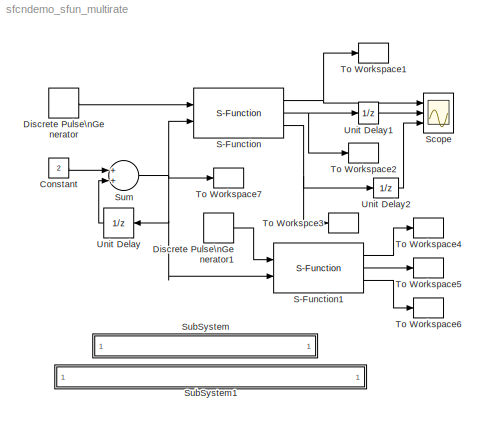
MODEL sfcndemo_sfun_multirate
KIND model
BLOCK [Constant] Constant
  Value = 2
BLOCK [DiscretePulseGenerator] Discrete Pulse\nGenerator
  Period = 100
  Ports = [0, 1]
  PulseWidth = 50
  SampleTime = .01
BLOCK [DiscretePulseGenerator] Discrete Pulse\nGenerator1
  Period = 100
  Ports = [0, 1]
  PulseWidth = 50
  SampleTime = .1
BLOCK [S-Function] S-Function
  FunctionName = sfun_multirate
  MaskCallbackString = ||
  MaskDescription = This is a multiple port, multi-rate S-function example. It accepts two input signals and produces three outputs.
  MaskEnableString = on,on,on
  MaskIconFrame = on
  MaskIconOpaque = on
  MaskIconRotate = none
  MaskIconUnits = autoscale
  MaskPromptString = First output rate|Second output rate|Third output rate
  MaskStyleString = edit,edit,edit
  MaskTabNameString = ,,
  MaskToolTipString = on,on,on
  MaskTunableValueString = on,on,on
  MaskType = S-function: sfun_multirate
  MaskValueString = 2|4|8
  MaskVarAliasString = ,,
  MaskVariables = k1=@1;k2=@2;k3=@3;
  MaskVisibilityString = on,on,on
  Parameters = k1,k2,k3
  Ports = [2, 3]
BLOCK [S-Function] S-Function1
  FunctionName = sfun_multirate
  MaskCallbackString = ||
  MaskDescription = This is a multiple port, multi-rate S-function example. It accepts two input signals and produces three outputs.
  MaskEnableString = on,on,on
  MaskIconFrame = on
  MaskIconOpaque = on
  MaskIconRotate = none
  MaskIconUnits = autoscale
  MaskPromptString = First output rate|Second output rate|Third output rate
  MaskStyleString = edit,edit,edit
  MaskTabNameString = ,,
  MaskToolTipString = on,on,on
  MaskTunableValueString = on,on,on
  MaskType = S-function: sfun_multirate
  MaskValueString = 2|4|8
  MaskVarAliasString = ,,
  MaskVariables = k1=@1;k2=@2;k3=@3;
  MaskVisibilityString = on,on,on
  Parameters = k1,k2,k3
  Ports = [2, 3]
BLOCK [Scope] Scope
  DataFormat = StructureWithTime
  NumInputPorts = 3
  Ports = [3]
  TimeRange = 5
  YMax = 120~100~100
  YMin = 0~0~0
BLOCK [SubSystem] SubSystem
  MaskDisplay = disp('matlabroot<path>');
  MaskIconFrame = on
  MaskIconOpaque = on
  MaskIconRotate = none
  MaskIconUnits = autoscale
  MinAlgLoopOccurrences = off
  OpenFcn = edit(fullfile(matlabroot,'simulink','src','sfun_multirate.c'))
  Ports = []
  PropExecContextAcrossSSBoundary = on
  RTWSystemCode = Auto
  TreatAsAtomicUnit = off
BLOCK [SubSystem] SubSystem1
  MaskDisplay = disp('matlabroot<path>');
  MaskIconFrame = on
  MaskIconOpaque = on
  MaskIconRotate = none
  MaskIconUnits = autoscale
  MinAlgLoopOccurrences = off
  OpenFcn = edit(fullfile(matlabroot,'toolbox','simulink','blocks','tlc_c','sfun_multirate.tlc'))
  Ports = []
  PropExecContextAcrossSSBoundary = on
  RTWSystemCode = Auto
  TreatAsAtomicUnit = off
BLOCK [Sum] Sum
  Ports = [2, 1]
BLOCK [ToWorkspace] To Workspace1
  MaxDataPoints = inf
  SampleTime = -1
  SaveFormat = Structure With Time
  VariableName = y2
BLOCK [ToWorkspace] To Workspace2
  MaxDataPoints = inf
  SampleTime = -1
  SaveFormat = Structure With Time
  VariableName = y3
BLOCK [ToWorkspace] To Workspace4
  MaxDataPoints = inf
  SampleTime = -1
  SaveFormat = Structure With Time
  VariableName = y5
BLOCK [ToWorkspace] To Workspace5
  MaxDataPoints = inf
  SampleTime = -1
  SaveFormat = Structure With Time
  VariableName = y6
BLOCK [ToWorkspace] To Workspace6
  MaxDataPoints = inf
  SampleTime = -1
  SaveFormat = Structure With Time
  VariableName = y7
BLOCK [ToWorkspace] To Workspace7
  MaxDataPoints = inf
  SampleTime = -1
  SaveFormat = Structure With Time
  VariableName = y1
BLOCK [ToWorkspace] To Workspce3
  MaxDataPoints = inf
  SampleTime = -1
  SaveFormat = Structure With Time
  VariableName = y4
BLOCK [UnitDelay] Unit Delay
  SampleTime = .1
BLOCK [UnitDelay] Unit Delay1
  SampleTime = -1
BLOCK [UnitDelay] Unit Delay2
  SampleTime = -1
LINE Constant:1 -> Sum:1
LINE Discrete Pulse\nGenerator1:1 -> S-Function1:1
LINE Discrete Pulse\nGenerator:1 -> S-Function:1
LINE S-Function1:1 -> To Workspace4:1
LINE S-Function1:2 -> To Workspace5:1
LINE S-Function1:3 -> To Workspace6:1
NET S-Function:1 -> Scope:1, To Workspace1:1
NET S-Function:2 -> To Workspace2:1, Unit Delay1:1
NET S-Function:3 -> To Workspce3:1, Unit Delay2:1
NET Sum:1 -> S-Function1:2, S-Function:2, To Workspace7:1, Unit Delay:1
LINE Unit Delay1:1 -> Scope:2
LINE Unit Delay2:1 -> Scope:3
LINE Unit Delay:1 -> Sum:2
note: NET lines group one-source signal fan-out (src -> all destinations, sorted); 1:1 wires keep LINE
note: 2 file-system paths scrubbed to <path> (not preserved elsewhere — flat text is the only slx artifact)
